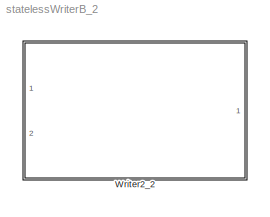
MODEL statelessWriterB_2
KIND model
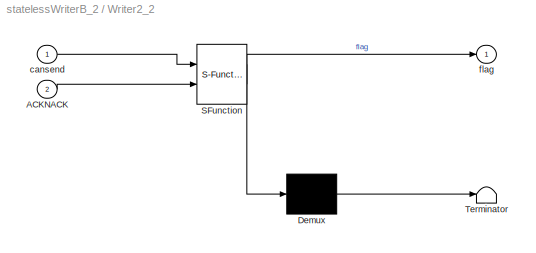
BLOCK [SubSystem] Writer2_2
  ErrorFcn = Stateflow.Translate.translate
  PermitHierarchicalResolution = ExplicitOnly
  Ports = [2, 1]
  RequestExecContextInheritance = off
  SFBlockType = Chart
  SID = 1
  TreatAsAtomicUnit = on
BLOCK [Demux] Writer2_2/ Demux 
  Outputs = 1
  Ports = [1, 1]
  SID = 1::95
BLOCK [S-Function] Writer2_2/ SFunction 
  EnableBusSupport = off
  FunctionName = sf_sfun
  PortCounts = [2 2]
  Ports = [2, 2]
  SFcnIsStateOwnerBlock = off
  SFunctionDeploymentMode = off
  SID = 1::94
  Tag = Stateflow S-Function statelessWriterB_2 3
BLOCK [Terminator] Writer2_2/ Terminator 
  SID = 1::96
BLOCK [Inport] Writer2_2/ACKNACK
  IconDisplay = Port number
  Port = 2
  SID = 1::93
BLOCK [Inport] Writer2_2/cansend
  IconDisplay = Port number
  SID = 1::89
BLOCK [Outport] Writer2_2/flag
  IconDisplay = Port number
  SID = 1::88
LINE Writer2_2/ Demux :1 -> Writer2_2/ Terminator :1
LINE Writer2_2/ SFunction :1 -> Writer2_2/ Demux :1
LINE Writer2_2/ SFunction :2 -> Writer2_2/flag:1
LINE Writer2_2/ACKNACK:1 -> Writer2_2/ SFunction :2
LINE Writer2_2/cansend:1 -> Writer2_2/ SFunction :1
CHART Writer2_2 states=3 transitions=7
  STATE_LABEL 'repairing\\nduring:flag=0'
  STATE_LABEL 'waiting\\nduring:flag=1;'
  STATE_LABEL 'must_repair\\nduring:flag=1;'
